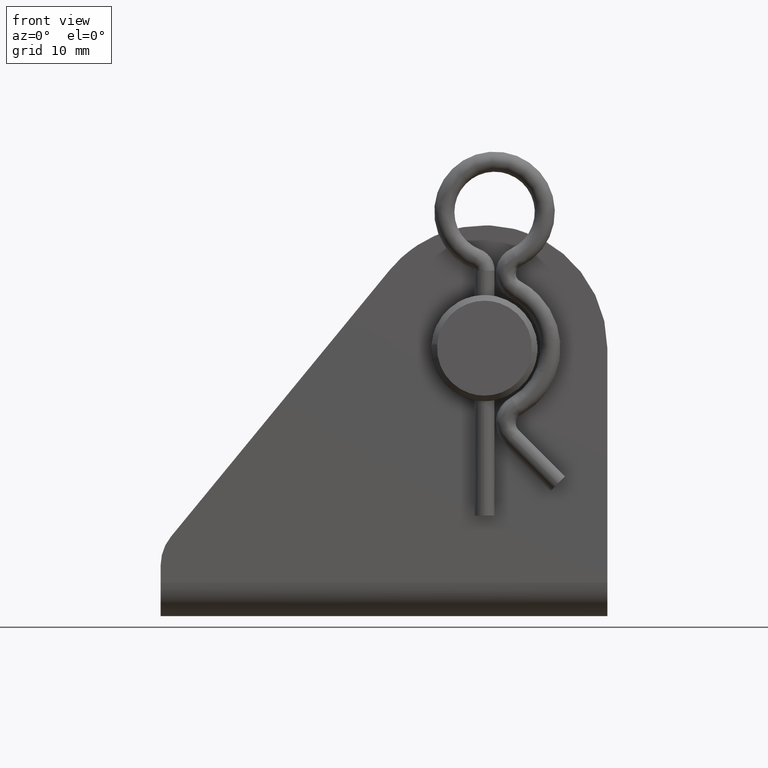
[diagram: clean part render]
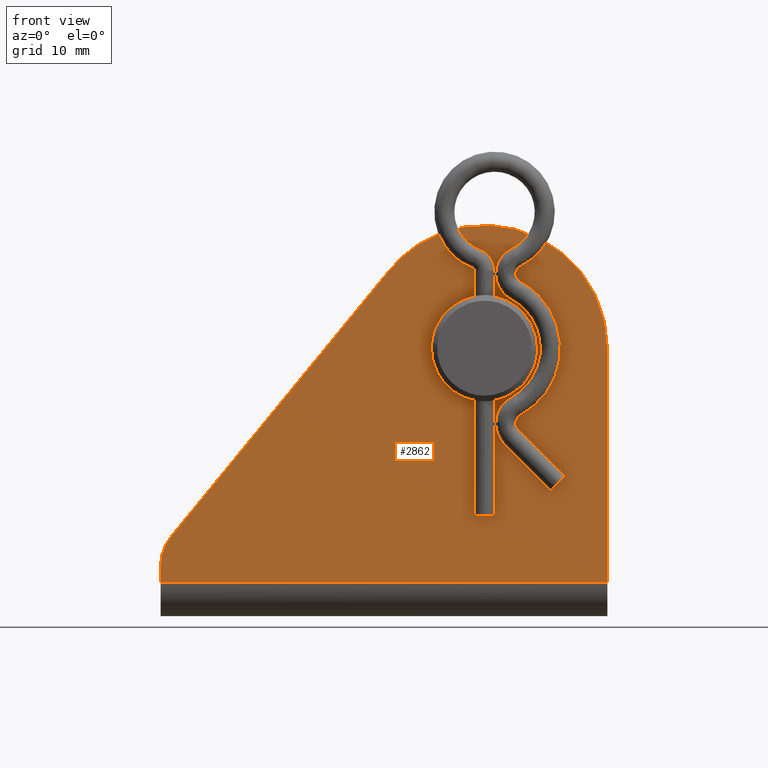
[diagram: same view with one face highlighted and labeled with its STEP entity id]
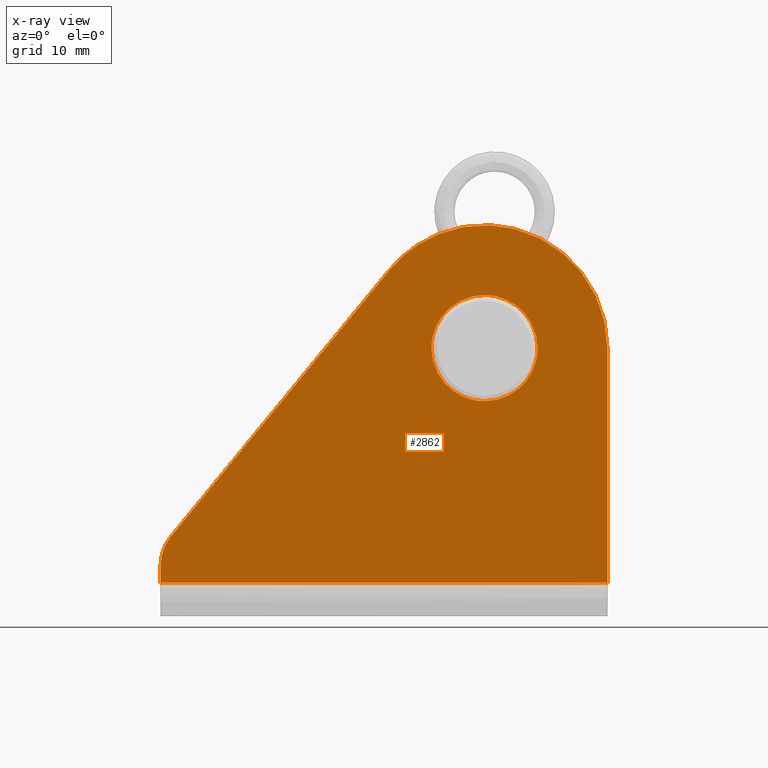
[diagram: x-ray of the same camera — body ghosted, the highlighted face saturated]
A machine part, front view. The second image highlights one B-rep face of the part: STEP entity #2862.
The next image is the same camera in x-ray: the body ghosted, the highlighted face saturated — about 0% of this face is hidden behind the body in this view.
In plain terms, the highlighted face is a freeform B-spline surface patch.
Its self-contained STEP definition (entity closure, byte-faithful):
#2661=CARTESIAN_POINT('',(-4.749871119677408,-11.999999999999099,-0.034990662413687));
#2662=VERTEX_POINT('',#2661);
#2663=CARTESIAN_POINT('',(-8.526513E-014,-11.999999999999099,-4.750000000000090));
#2664=VERTEX_POINT('',#2663);
#2665=CARTESIAN_POINT('',(-4.749871119677409,-11.999999999999096,-0.034990662413687));
#2666=CARTESIAN_POINT('',(-4.715137271989331,-11.999999999999098,-4.750000000000089));
#2667=CARTESIAN_POINT('',(-8.526513E-014,-11.999999999999099,-4.750000000000090));
#2675=(BOUNDED_CURVE()B_SPLINE_CURVE(2,(#2665,#2666,#2667),.UNSPECIFIED.,.F.,.U.)B_SPLINE_CURVE_WITH_KNOTS((3,3),(0.251300251534490,0.500000000000000),.UNSPECIFIED.)CURVE()GEOMETRIC_REPRESENTATION_ITEM()RATIONAL_B_SPLINE_CURVE((0.996969166937808,0.708630120615363,1.0))REPRESENTATION_ITEM(''));
#2676=EDGE_CURVE('',#2662,#2664,#2675,.T.);
#2678=CARTESIAN_POINT('',(4.749871119677238,-11.999999999999099,0.034990662413688));
#2679=VERTEX_POINT('',#2678);
#2680=CARTESIAN_POINT('',(-8.526513E-014,-11.999999999999099,-4.750000000000090));
#2681=CARTESIAN_POINT('',(4.750000000000006,-11.999999999999099,-4.750000000000089));
#2682=CARTESIAN_POINT('',(4.750000000000005,-11.999999999999099,0.0));
#2683=CARTESIAN_POINT('',(4.750000000000005,-11.999999999999101,0.017495568557847));
#2684=CARTESIAN_POINT('',(4.749871119677239,-11.999999999999098,0.034990662413688));
#2692=(BOUNDED_CURVE()B_SPLINE_CURVE(2,(#2680,#2681,#2682,#2683,#2684),.UNSPECIFIED.,.F.,.U.)B_SPLINE_CURVE_WITH_KNOTS((3,2,3),(0.500000000000000,0.750000000000000,0.751300251534490),.UNSPECIFIED.)CURVE()GEOMETRIC_REPRESENTATION_ITEM()RATIONAL_B_SPLINE_CURVE((1.0,0.707106781186548,1.0,0.998476660571185,0.996969166937808))REPRESENTATION_ITEM(''));
#2693=EDGE_CURVE('',#2664,#2679,#2692,.T.);
#2735=CARTESIAN_POINT('',(-8.526513E-014,-11.999999999999099,4.750000000000090));
#2736=VERTEX_POINT('',#2735);
#2737=CARTESIAN_POINT('',(-8.526513E-014,-11.999999999999099,4.750000000000090));
#2738=CARTESIAN_POINT('',(-4.750000000000176,-11.999999999999099,4.750000000000089));
#2739=CARTESIAN_POINT('',(-4.750000000000175,-11.999999999999099,0.0));
#2740=CARTESIAN_POINT('',(-4.750000000000175,-11.999999999999101,-0.017495568557846));
#2741=CARTESIAN_POINT('',(-4.749871119677409,-11.999999999999096,-0.034990662413687));
#2749=(BOUNDED_CURVE()B_SPLINE_CURVE(2,(#2737,#2738,#2739,#2740,#2741),.UNSPECIFIED.,.F.,.U.)B_SPLINE_CURVE_WITH_KNOTS((3,2,3),(0.0,0.250000000000000,0.251300251534490),.UNSPECIFIED.)CURVE()GEOMETRIC_REPRESENTATION_ITEM()RATIONAL_B_SPLINE_CURVE((1.0,0.707106781186548,1.0,0.998476660571185,0.996969166937808))REPRESENTATION_ITEM(''));
#2750=EDGE_CURVE('',#2736,#2662,#2749,.T.);
#2757=CARTESIAN_POINT('',(4.749871119677239,-11.999999999999098,0.034990662413688));
#2758=CARTESIAN_POINT('',(4.715137271989160,-11.999999999999098,4.750000000000089));
#2759=CARTESIAN_POINT('',(-8.526513E-014,-11.999999999999099,4.750000000000090));
#2767=(BOUNDED_CURVE()B_SPLINE_CURVE(2,(#2757,#2758,#2759),.UNSPECIFIED.,.F.,.U.)B_SPLINE_CURVE_WITH_KNOTS((3,3),(0.751300251534490,1.0),.UNSPECIFIED.)CURVE()GEOMETRIC_REPRESENTATION_ITEM()RATIONAL_B_SPLINE_CURVE((0.996969166937808,0.708630120615363,1.0))REPRESENTATION_ITEM(''));
#2768=EDGE_CURVE('',#2679,#2736,#2767,.T.);
#2779=CARTESIAN_POINT('',(-30.997999922472239,-11.999999999999099,12.596860385552050));
#2780=CARTESIAN_POINT('',(12.998000995355840,-11.999999999999099,12.596860385552050));
#2781=CARTESIAN_POINT('',(-30.997999922472239,-11.999999999999099,-22.598327554005731));
#2782=CARTESIAN_POINT('',(12.998000995355840,-11.999999999999099,-22.598327554005731));
#2783=B_SPLINE_SURFACE_WITH_KNOTS('',1,1,((#2779,#2781),(#2780,#2782)),.UNSPECIFIED.,.F.,.F.,.U.,(2,2),(2,2),(0.0,43.996000917828077),(0.0,35.195187939557783),.UNSPECIFIED.);
#2784=CARTESIAN_POINT('',(-29.0,-11.999999999999121,-21.0));
#2785=VERTEX_POINT('',#2784);
#2786=CARTESIAN_POINT('',(-29.0,-11.999999999999121,-19.431098884280900));
#2787=VERTEX_POINT('',#2786);
#2788=CARTESIAN_POINT('',(-29.0,-11.999999999999121,-21.0));
#2789=CARTESIAN_POINT('',(-29.0,-11.999999999999121,-19.431098884280900));
#2790=QUASI_UNIFORM_CURVE('',1,(#2788,#2789),.UNSPECIFIED.,.F.,.U.);
#2791=EDGE_CURVE('',#2785,#2787,#2790,.T.);
#2792=ORIENTED_EDGE('',*,*,#2791,.F.);
#2793=CARTESIAN_POINT('',(11.0,-11.999999999999121,-21.0));
#2794=VERTEX_POINT('',#2793);
#2795=CARTESIAN_POINT('',(-29.0,-11.999999999999121,-21.0));
#2796=CARTESIAN_POINT('',(11.0,-11.999999999999121,-21.0));
#2797=QUASI_UNIFORM_CURVE('',1,(#2795,#2796),.UNSPECIFIED.,.F.,.U.);
#2798=EDGE_CURVE('',#2785,#2794,#2797,.T.);
#2799=ORIENTED_EDGE('',*,*,#2798,.T.);
#2800=CARTESIAN_POINT('',(11.0,-11.999999999999121,0.0));
#2801=VERTEX_POINT('',#2800);
#2802=CARTESIAN_POINT('',(11.0,-11.999999999999121,0.0));
#2803=CARTESIAN_POINT('',(11.0,-11.999999999999121,-21.0));
#2804=QUASI_UNIFORM_CURVE('',1,(#2802,#2803),.UNSPECIFIED.,.F.,.U.);
#2805=EDGE_CURVE('',#2801,#2794,#2804,.T.);
#2806=ORIENTED_EDGE('',*,*,#2805,.F.);
#2807=CARTESIAN_POINT('',(-8.503498532940530,-11.999999999999121,6.977858747515390));
#2808=VERTEX_POINT('',#2807);
#2809=CARTESIAN_POINT('',(11.0,-11.999999999999121,0.0));
#2810=CARTESIAN_POINT('',(11.000060591969660,-11.999999999999121,0.632779760251184));
#2811=CARTESIAN_POINT('',(10.911768584390380,-11.999999999999110,1.652231251340377));
#2812=CARTESIAN_POINT('',(10.573594447025091,-11.999999999999160,3.127724793566058));
#2813=CARTESIAN_POINT('',(10.174237559418181,-11.999999999999000,4.238447019394608));
#2814=CARTESIAN_POINT('',(9.642954801903773,-11.999999999999330,5.329849372121823));
#2815=CARTESIAN_POINT('',(8.997440008019392,-11.999999999998820,6.379723619423834));
#2816=CARTESIAN_POINT('',(8.168215832568123,-11.999999999999091,7.408654112808942));
#2817=CARTESIAN_POINT('',(7.069105770021836,-11.999999999999250,8.474970585569277));
#2818=CARTESIAN_POINT('',(5.986627241690758,-11.999999999998940,9.266238234464359));
#2819=CARTESIAN_POINT('',(4.768042849330237,-11.999999999999440,9.934714641473329));
#2820=CARTESIAN_POINT('',(3.567218184403913,-11.999999999997820,10.440631272550080));
#2821=CARTESIAN_POINT('',(2.274241756634236,-11.999999999999501,10.790806293201390));
#2822=CARTESIAN_POINT('',(0.828391653875825,-11.999999999999110,10.997863400980391));
#2823=CARTESIAN_POINT('',(-0.634589590371652,-11.999999999998741,11.023652283340120));
#2824=CARTESIAN_POINT('',(-2.119469478710369,-11.999999999999339,10.824354566027470));
#2825=CARTESIAN_POINT('',(-3.684244263385035,-11.999999999998950,10.407412980164221));
#2826=CARTESIAN_POINT('',(-5.175983744525588,-11.999999999999179,9.765010766570757));
#2827=CARTESIAN_POINT('',(-6.418895958010222,-11.999999999999130,8.960474430848356));
#2828=CARTESIAN_POINT('',(-7.510889070672302,-11.999999999999099,8.073274190638216));
#2829=CARTESIAN_POINT('',(-8.113284699507863,-11.999999999999149,7.453478348855251));
#2830=CARTESIAN_POINT('',(-8.503498532940530,-11.999999999999121,6.977858747515390));
#2831=B_SPLINE_CURVE_WITH_KNOTS('',3,(#2809,#2810,#2811,#2812,#2813,#2814,#2815,#2816,#2817,#2818,#2819,#2820,#2821,#2822,#2823,#2824,#2825,#2826,#2827,#2828,#2829,#2830),.UNSPECIFIED.,.F.,.U.,(4,1,1,1,1,1,1,1,1,1,1,1,1,1,1,1,1,1,1,4),(0.000000043734136,1.898325575444122,3.058430444229217,4.534936002897315,5.431377736202574,6.696941762665222,8.226166038803836,9.386266835781107,11.284625247267950,12.233796102051020,13.552055467499731,15.186759470434311,16.241399493076631,17.928816820088791,19.563504297835749,20.723606022312719,22.780149895416681,24.414850091497939,25.153080772972949,26.998692325625381),.UNSPECIFIED.);
#2832=EDGE_CURVE('',#2801,#2808,#2831,.T.);
#2833=ORIENTED_EDGE('',*,*,#2832,.T.);
#2834=CARTESIAN_POINT('',(-28.092181284705649,-11.999999999999099,-16.893695703366198));
#2835=VERTEX_POINT('',#2834);
#2836=CARTESIAN_POINT('',(-8.503498532940530,-11.999999999999121,6.977858747515390));
#2837=CARTESIAN_POINT('',(-28.092181284705649,-11.999999999999099,-16.893695703366198));
#2838=QUASI_UNIFORM_CURVE('',1,(#2836,#2837),.UNSPECIFIED.,.F.,.U.);
#2839=EDGE_CURVE('',#2808,#2835,#2838,.T.);
#2840=ORIENTED_EDGE('',*,*,#2839,.T.);
#2841=CARTESIAN_POINT('',(-28.092181284705660,-11.999999999999121,-16.893695703366191));
#2842=CARTESIAN_POINT('',(-29.000000000000007,-11.999999999999117,-18.000000000000192));
#2843=CARTESIAN_POINT('',(-29.0,-11.999999999999121,-19.431098884280900));
#2851=(BOUNDED_CURVE()B_SPLINE_CURVE(2,(#2841,#2842,#2843),.UNSPECIFIED.,.F.,.U.)CURVE()GEOMETRIC_REPRESENTATION_ITEM()QUASI_UNIFORM_CURVE()RATIONAL_B_SPLINE_CURVE((1.0,0.941553323284564,1.0))REPRESENTATION_ITEM(''));
#2852=EDGE_CURVE('',#2835,#2787,#2851,.T.);
#2853=ORIENTED_EDGE('',*,*,#2852,.T.);
#2854=EDGE_LOOP('',(#2792,#2799,#2806,#2833,#2840,#2853));
#2855=FACE_OUTER_BOUND('',#2854,.T.);
#2856=ORIENTED_EDGE('',*,*,#2693,.F.);
#2857=ORIENTED_EDGE('',*,*,#2676,.F.);
#2858=ORIENTED_EDGE('',*,*,#2750,.F.);
#2859=ORIENTED_EDGE('',*,*,#2768,.F.);
#2860=EDGE_LOOP('',(#2856,#2857,#2858,#2859));
#2861=FACE_BOUND('',#2860,.T.);
#2862=ADVANCED_FACE('',(#2855,#2861),#2783,.F.);